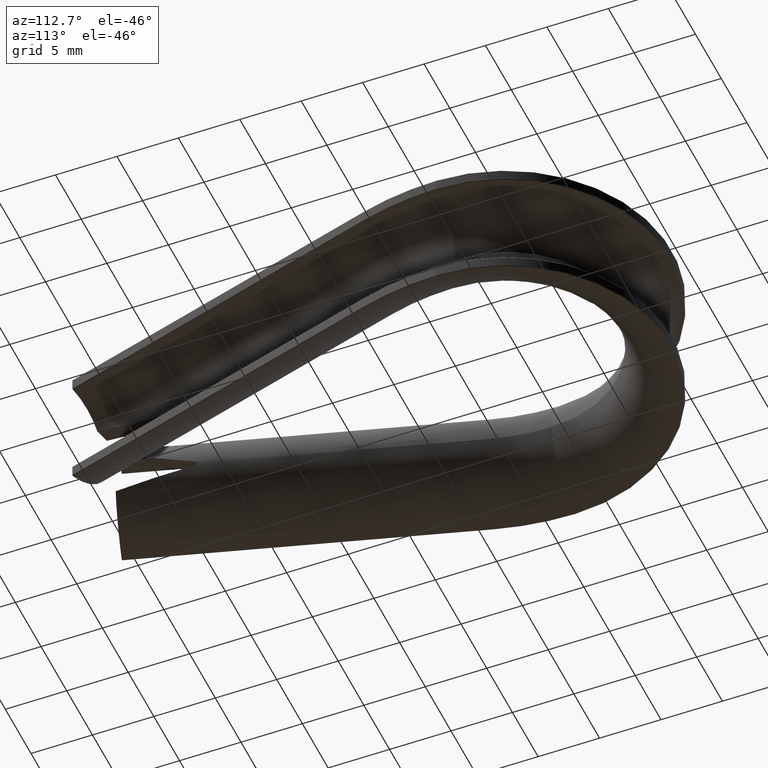
[diagram: clean part render]
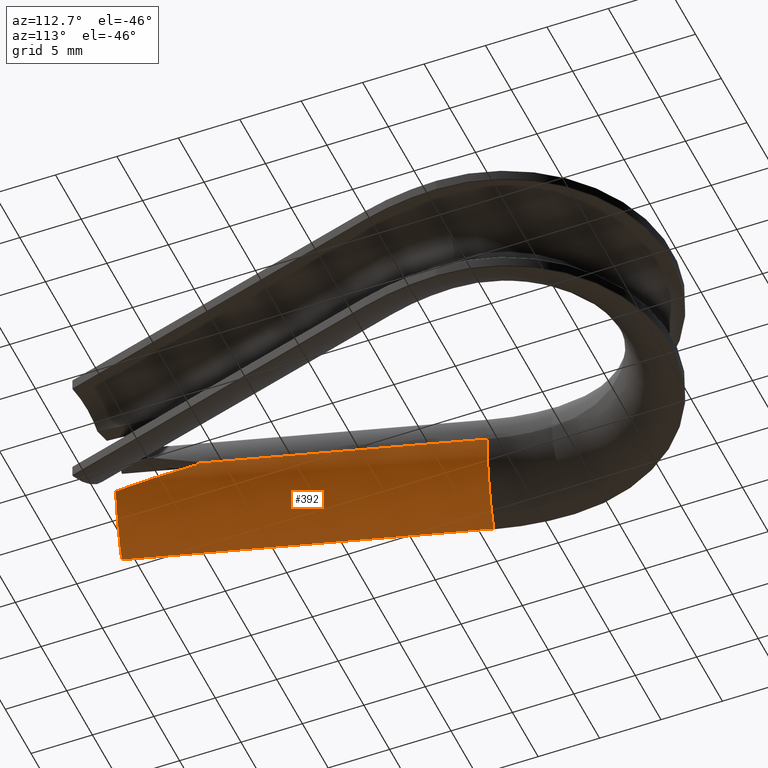
[diagram: same view with one face highlighted and labeled with its STEP entity id]
A machine part, auxiliary view. The second image highlights one B-rep face of the part: STEP entity #392.
In plain terms, the highlighted cylindrical surface (partial cylindrical patch) has radius 5.25 mm, axis along (0.2773, -0.9608, 0).
Its self-contained STEP definition (entity closure, byte-faithful):
#392 = ADVANCED_FACE ( 'NONE', ( #4975 ), #8065, .T. ) ;
#780 = DIRECTION ( 'NONE',  ( 0.9607936630017663800, 0.2772643812963508400, 0.0000000000000000000 ) ) ;
#873 = VERTEX_POINT ( 'NONE', #14605 ) ;
#933 = EDGE_LOOP ( 'NONE', ( #9848, #11370, #5051, #11312, #10571, #11291 ) ) ;
#1147 = DIRECTION ( 'NONE',  ( -0.2772643812963506700, 0.9607936630017663800, -0.0000000000000000000 ) ) ;
#1198 = DIRECTION ( 'NONE',  ( 0.0000000000000000000, 0.0000000000000000000, -1.000000000000000000 ) ) ;
#1202 = CARTESIAN_POINT ( 'NONE',  ( -2.188563911144963300, 5.838640702564900300, -0.1920647927069019900 ) ) ;
#1347 = CARTESIAN_POINT ( 'NONE',  ( -13.33845266479107000, 25.55360313485985200, 0.0000000000000000000 ) ) ;
#1919 = LINE ( 'NONE', #2775, #10618 ) ;
#2775 = CARTESIAN_POINT ( 'NONE',  ( -8.294285934031794500, 27.00924113666569700, 0.0000000000000000000 ) ) ;
#2883 = DIRECTION ( 'NONE',  ( 0.2772643812963506700, -0.9607936630017663800, 0.0000000000000000000 ) ) ;
#2896 = VERTEX_POINT ( 'NONE', #5917 ) ;
#3064 = CARTESIAN_POINT ( 'NONE',  ( -4.711634357721332700, -1.215387069468952800, -5.177998584139926300 ) ) ;
#3176 = EDGE_CURVE ( 'NONE', #5762, #2896, #9811, .T. ) ;
#3643 = CARTESIAN_POINT ( 'NONE',  ( -2.188563911144963300, 5.838640702564900300, -0.1920647927069019900 ) ) ;
#3696 = CARTESIAN_POINT ( 'NONE',  ( -2.222897869731844000, 5.968107761496663800, -0.08677282002014359600 ) ) ;
#3811 = CARTESIAN_POINT ( 'NONE',  ( -2.226525645591320900, 5.982863328994115500, -0.04347108981585148800 ) ) ;
#3886 = AXIS2_PLACEMENT_3D ( 'NONE', #15605, #8168, #780 ) ;
#4635 = EDGE_CURVE ( 'NONE', #2896, #6388, #10922, .T. ) ;
#4824 = CARTESIAN_POINT ( 'NONE',  ( -2.209543230345463200, 5.916143484925491700, -0.1551819000474814500 ) ) ;
#4877 = CARTESIAN_POINT ( 'NONE',  ( -0.8482331608058698600, -0.1004925985627926300, -1.916843458046054700 ) ) ;
#4975 = FACE_OUTER_BOUND ( 'NONE', #933, .T. ) ;
#4978 = CARTESIAN_POINT ( 'NONE',  ( -5.544166730759270600, -1.455638001805838800, 0.0000000000000000000 ) ) ;
#5051 = ORIENTED_EDGE ( 'NONE', *, *, #13953, .T. ) ;
#5482 = CARTESIAN_POINT ( 'NONE',  ( -2.226525645591327200, 5.982863328994140400, -1.769273621091016500E-015 ) ) ;
#5671 = EDGE_CURVE ( 'NONE', #873, #14898, #1919, .T. ) ;
#5762 = VERTEX_POINT ( 'NONE', #14334 ) ;
#5917 = CARTESIAN_POINT ( 'NONE',  ( -0.8482331608058698600, -0.1004925985627926300, -1.916843458046054700 ) ) ;
#6388 = VERTEX_POINT ( 'NONE', #3064 ) ;
#6410 = DIRECTION ( 'NONE',  ( -0.2772643812963505600, 0.9607936630017665000, 0.0000000000000000000 ) ) ;
#7394 = VECTOR ( 'NONE', #1147, 1000.000000000000200 ) ;
#7473 = VERTEX_POINT ( 'NONE', #15198 ) ;
#8065 = CYLINDRICAL_SURFACE ( 'NONE', #3886, 5.250000000000001800 ) ;
#8168 = DIRECTION ( 'NONE',  ( 0.2772643812963506700, -0.9607936630017663800, 0.0000000000000000000 ) ) ;
#8656 = CARTESIAN_POINT ( 'NONE',  ( -2.199860812363245300, 5.879348308090147400, -0.1802429315112472900 ) ) ;
#8957 = AXIS2_PLACEMENT_3D ( 'NONE', #4978, #11049, #1198 ) ;
#9691 = CARTESIAN_POINT ( 'NONE',  ( -12.50592029175313200, 25.79385406719674000, -5.177998584139925400 ) ) ;
#9811 =( BOUNDED_CURVE ( )  B_SPLINE_CURVE ( 3, ( #1202, #10012, #13723, #4877 ),
 .UNSPECIFIED., .F., .F. ) 
 B_SPLINE_CURVE_WITH_KNOTS ( ( 4, 4 ),
 ( 4.829327686373047400, 5.166489973380089800 ),
 .UNSPECIFIED. ) 
 CURVE ( )  GEOMETRIC_REPRESENTATION_ITEM ( )  RATIONAL_B_SPLINE_CURVE ( ( 1.000000000000000000, 0.9905492134916069600, 0.9905492134916069600, 1.000000000000000000 ) ) 
 REPRESENTATION_ITEM ( '' )  );
#9848 = ORIENTED_EDGE ( 'NONE', *, *, #15596, .F. ) ;
#10012 = CARTESIAN_POINT ( 'NONE',  ( -1.622422911477933600, 3.798590600338372300, -0.7845140128439838100 ) ) ;
#10293 = CIRCLE ( 'NONE', #10357, 5.250000000000000000 ) ;
#10357 = AXIS2_PLACEMENT_3D ( 'NONE', #1347, #6410, #12625 ) ;
#10571 = ORIENTED_EDGE ( 'NONE', *, *, #4635, .T. ) ;
#10618 = VECTOR ( 'NONE', #2883, 1000.000000000000200 ) ;
#10922 = CIRCLE ( 'NONE', #8957, 5.250000000000000000 ) ;
#11049 = DIRECTION ( 'NONE',  ( -0.2772643812963505600, 0.9607936630017665000, 0.0000000000000000000 ) ) ;
#11291 = ORIENTED_EDGE ( 'NONE', *, *, #15061, .T. ) ;
#11312 = ORIENTED_EDGE ( 'NONE', *, *, #3176, .T. ) ;
#11370 = ORIENTED_EDGE ( 'NONE', *, *, #5671, .T. ) ;
#12625 = DIRECTION ( 'NONE',  ( 0.0000000000000000000, 0.0000000000000000000, -1.000000000000000000 ) ) ;
#13723 = CARTESIAN_POINT ( 'NONE',  ( -1.171383315772391400, 1.799991163367875600, -1.364925580436014500 ) ) ;
#13953 = EDGE_CURVE ( 'NONE', #14898, #5762, #15783, .T. ) ;
#14023 = LINE ( 'NONE', #9691, #7394 ) ;
#14334 = CARTESIAN_POINT ( 'NONE',  ( -2.188563911144963300, 5.838640702564900300, -0.1920647927069019900 ) ) ;
#14605 = CARTESIAN_POINT ( 'NONE',  ( -8.294285934031794500, 27.00924113666569700, 0.0000000000000000000 ) ) ;
#14713 = CARTESIAN_POINT ( 'NONE',  ( -2.226525645591327200, 5.982863328994140400, -1.769273621091016500E-015 ) ) ;
#14898 = VERTEX_POINT ( 'NONE', #5482 ) ;
#15061 = EDGE_CURVE ( 'NONE', #6388, #7473, #14023, .T. ) ;
#15198 = CARTESIAN_POINT ( 'NONE',  ( -12.50592029175382600, 25.79385406719654100, -5.177998584140174100 ) ) ;
#15596 = EDGE_CURVE ( 'NONE', #873, #7473, #10293, .T. ) ;
#15605 = CARTESIAN_POINT ( 'NONE',  ( -13.33845266479107000, 25.55360313485985200, 0.0000000000000000000 ) ) ;
#15783 = B_SPLINE_CURVE_WITH_KNOTS ( 'NONE', 3,
 ( #14713, #3811, #3696, #4824, #8656, #3643 ),
 .UNSPECIFIED., .F., .F.,
 ( 4, 2, 4 ),
 ( 0.0002600587596711304900, 0.0003898262841825538100, 0.0005195938086939771800 ),
 .UNSPECIFIED. ) ;